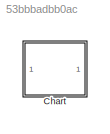
MODEL slx_53bbbadbb0ac
KIND model
CONFIG AbsTol = auto
CONFIG EnableMultiTasking = on
CONFIG FixedStep = 0.1
CONFIG MaxStep = auto
CONFIG MinStep = auto
CONFIG RelTol = 1e-3
CONFIG SampleTimeConstraint = Unconstrained
CONFIG SolverName = FixedStepDiscrete
CONFIG StartTime = 0.0
CONFIG StopTime = 0.1
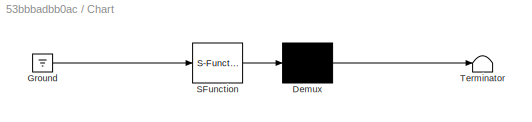
BLOCK [SubSystem] Chart
  ErrorFcn = Stateflow.Translate.translate
  PermitHierarchicalResolution = ExplicitOnly
  Ports = []
  RequestExecContextInheritance = off
  SFBlockType = Chart
  TreatAsAtomicUnit = on
BLOCK [Demux] Chart/ Demux 
  Outputs = 1
  Ports = [1, 1]
BLOCK [Ground] Chart/ Ground 
BLOCK [S-Function] Chart/ SFunction 
  EnableBusSupport = off
  FunctionName = sf_sfun
  PortCounts = [1 1]
  Ports = [1, 1]
  SFcnIsStateOwnerBlock = off
  SFunctionDeploymentMode = off
  Tag = Stateflow S-Function 3
BLOCK [Terminator] Chart/ Terminator 
CHART Chart states=4 transitions=3
  STATE_LABEL '[w,z] = compute2(x,y)'
  STATE_LABEL 'SCRIPT:\nfunction [w,z] = compute2(x,y)\n  x = x + 1;\n  y = y - 1;\n  w = x + 2 * y;\n  z = x * y;\n  '
  STATE_LABEL 'f(s)'
  STATE_LABEL 'SCRIPT:\nfunction f(s)\n  fprintf(s+"\\n");\n'
  STATE_LABEL 'A\nen: f("en_A")'
  STATE_LABEL 'B\nen: f("en_B")'
CHART  states=0 transitions=0
